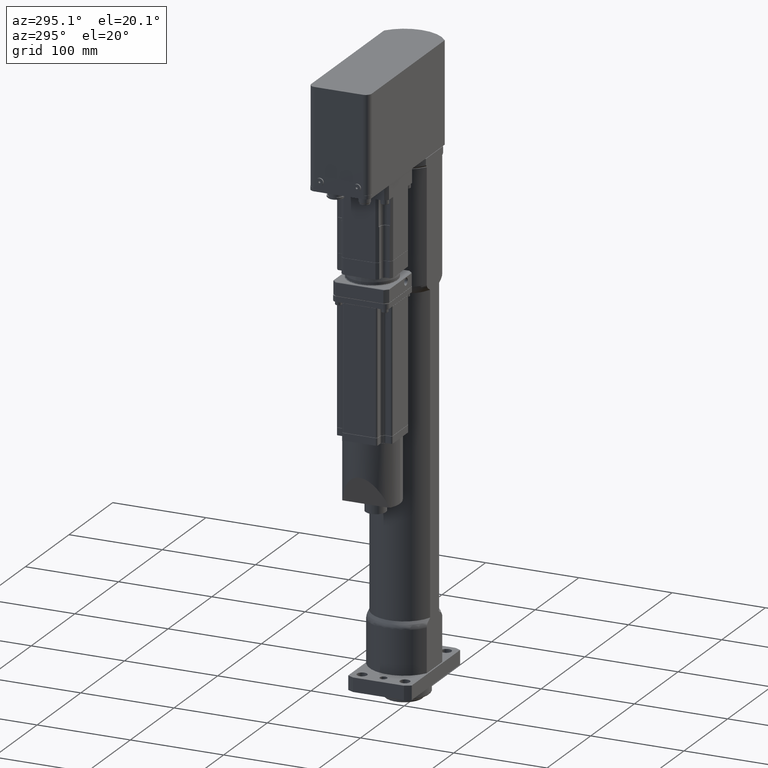
[diagram: clean part render]
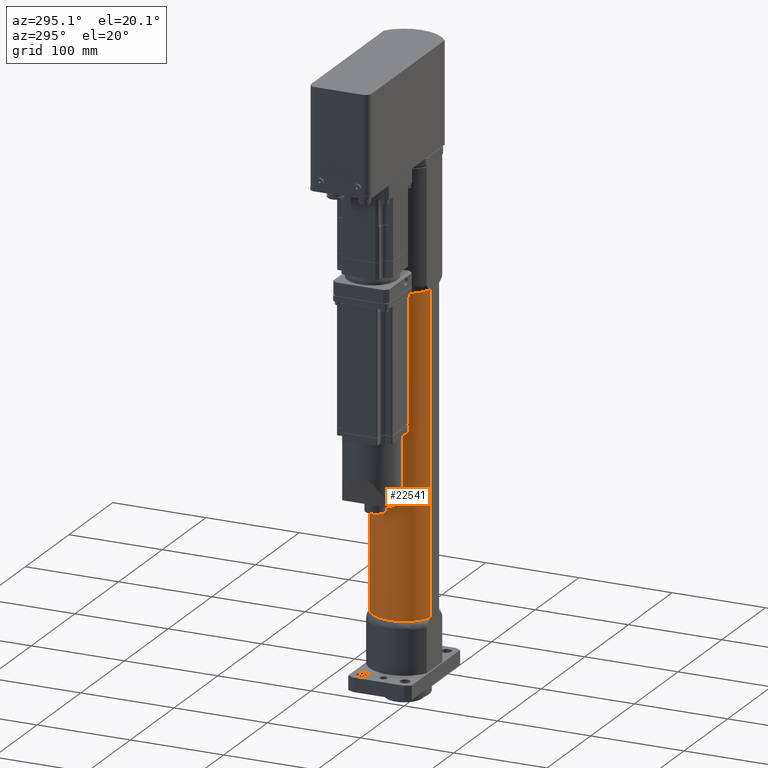
[diagram: same view with one face highlighted and labeled with its STEP entity id]
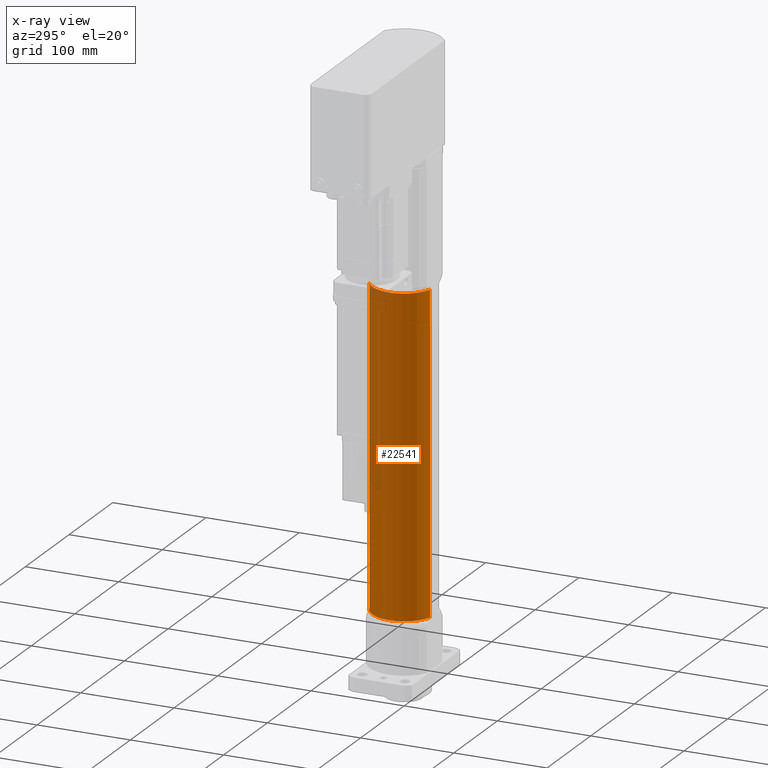
[diagram: x-ray of the same camera — body ghosted, the highlighted face saturated]
A machine part, auxiliary view. The second image highlights one B-rep face of the part: STEP entity #22541.
The next image is the same camera in x-ray: the body ghosted, the highlighted face saturated — about 12% of this face is hidden behind the body in this view.
In plain terms, the highlighted cylindrical surface (edge-blend (fillet) strip) has radius 34 mm, axis along (0, 0, 1).
Its self-contained STEP definition (entity closure, byte-faithful):
#1141=CYLINDRICAL_SURFACE('',#24068,34.);
#1512=CIRCLE('',#23992,34.);
#1544=CIRCLE('',#24069,34.);
#2444=FACE_OUTER_BOUND('',#3762,.T.);
#3762=EDGE_LOOP('',(#14563,#14564,#14565,#14566));
#5193=LINE('',#32448,#6975);
#5207=LINE('',#32630,#6989);
#6975=VECTOR('',#26267,10.);
#6989=VECTOR('',#26295,10.);
#8827=VERTEX_POINT('',#32443);
#8828=VERTEX_POINT('',#32447);
#8858=VERTEX_POINT('',#32625);
#8859=VERTEX_POINT('',#32629);
#10952=EDGE_CURVE('',#8828,#8827,#5193,.T.);
#10990=EDGE_CURVE('',#8859,#8858,#5207,.T.);
#10994=EDGE_CURVE('',#8828,#8858,#1512,.T.);
#11102=EDGE_CURVE('',#8859,#8827,#1544,.T.);
#14563=ORIENTED_EDGE('',*,*,#10952,.T.);
#14564=ORIENTED_EDGE('',*,*,#11102,.F.);
#14565=ORIENTED_EDGE('',*,*,#10990,.T.);
#14566=ORIENTED_EDGE('',*,*,#10994,.F.);
#22541=ADVANCED_FACE('',(#2444),#1141,.T.);
#23992=AXIS2_PLACEMENT_3D('',#32638,#26304,#26305);
#24068=AXIS2_PLACEMENT_3D('',#32950,#26520,#26521);
#24069=AXIS2_PLACEMENT_3D('',#32951,#26522,#26523);
#26267=DIRECTION('',(0.,0.,-1.));
#26295=DIRECTION('',(0.,0.,1.));
#26304=DIRECTION('center_axis',(0.,0.,1.));
#26305=DIRECTION('ref_axis',(-1.,0.,0.));
#26520=DIRECTION('center_axis',(0.,0.,1.));
#26521=DIRECTION('ref_axis',(-1.,0.,0.));
#26522=DIRECTION('center_axis',(0.,0.,-1.));
#26523=DIRECTION('ref_axis',(-1.,0.,0.));
#32443=CARTESIAN_POINT('',(-9.98749217771911,32.5,70.));
#32447=CARTESIAN_POINT('',(-9.98749217771911,32.5,409.));
#32448=CARTESIAN_POINT('',(-9.98749217771911,32.5,70.));
#32625=CARTESIAN_POINT('',(-9.98749217771901,-32.5,409.));
#32629=CARTESIAN_POINT('',(-9.98749217771901,-32.5,70.));
#32630=CARTESIAN_POINT('',(-9.98749217771901,-32.5,70.));
#32638=CARTESIAN_POINT('Origin',(0.,0.,409.));
#32950=CARTESIAN_POINT('Origin',(0.,0.,70.));
#32951=CARTESIAN_POINT('Origin',(0.,0.,70.));